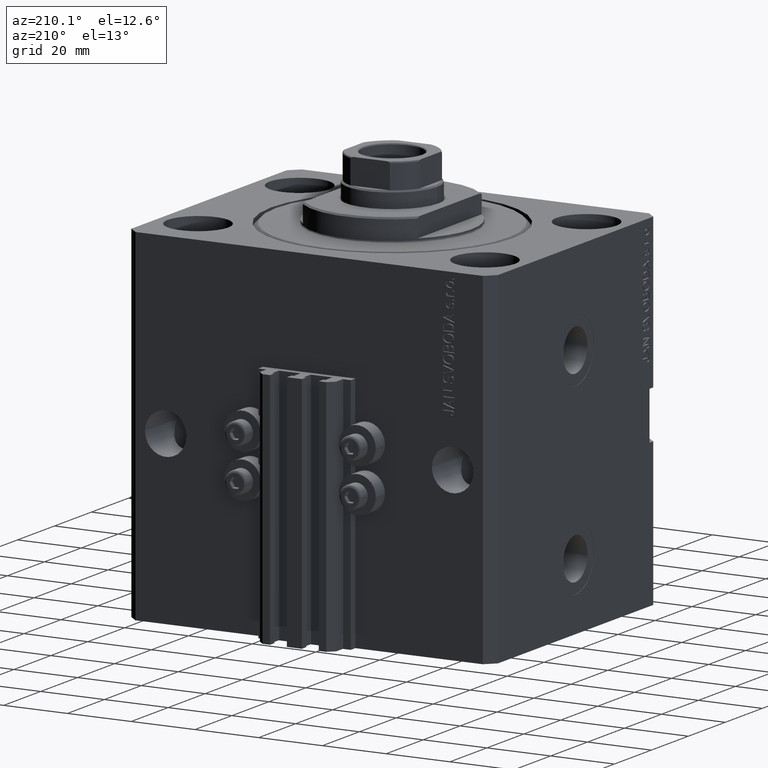
[diagram: clean part render]
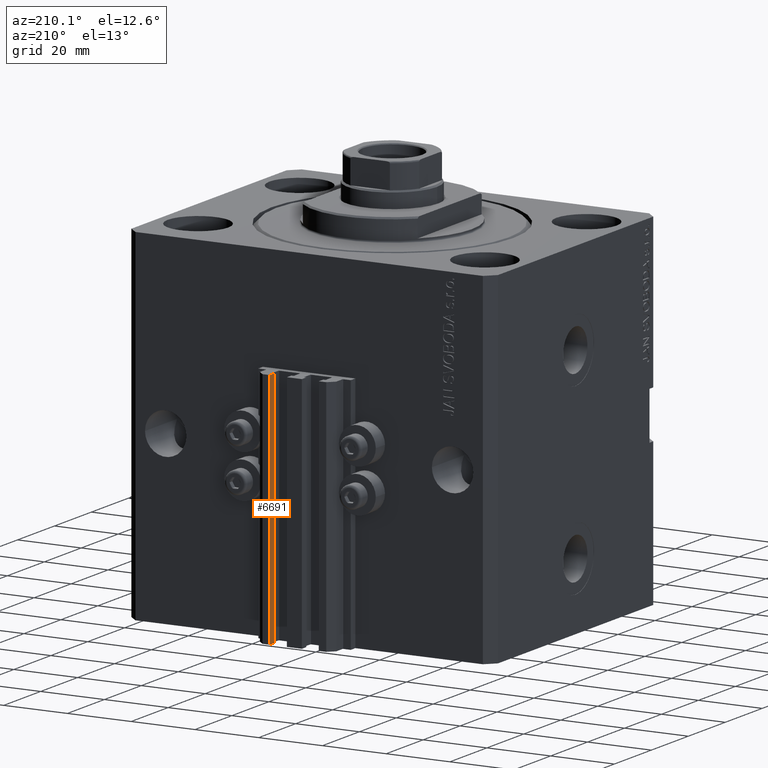
[diagram: same view with one face highlighted and labeled with its STEP entity id]
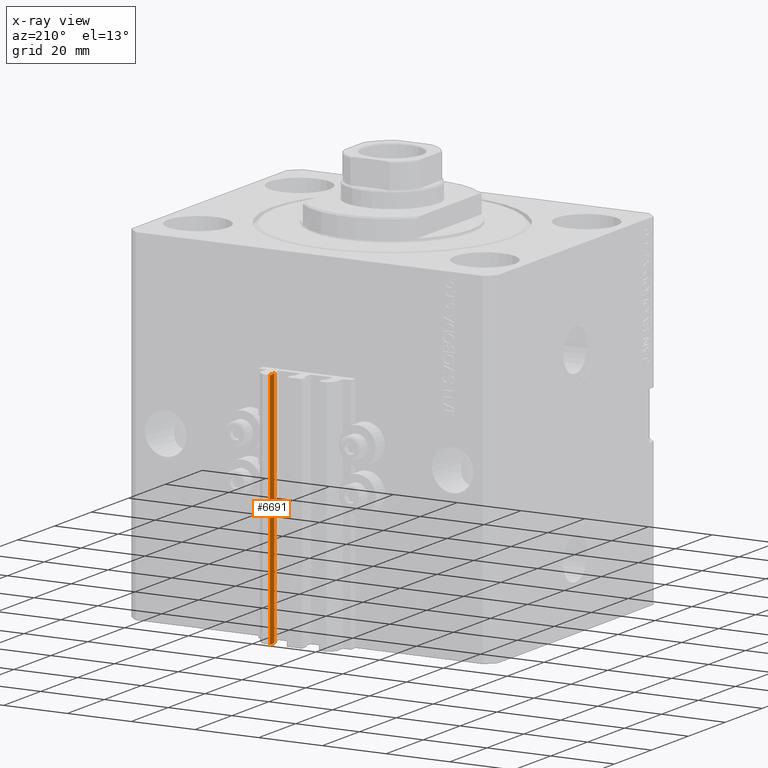
[diagram: x-ray of the same camera — body ghosted, the highlighted face saturated]
A machine part, auxiliary view. The second image highlights one B-rep face of the part: STEP entity #6691.
The next image is the same camera in x-ray: the body ghosted, the highlighted face saturated — about 0% of this face is hidden behind the body in this view.
In plain terms, the highlighted planar face has unit normal (-1, 0, 0).
Its self-contained STEP definition (entity closure, byte-faithful):
#298 = EDGE_CURVE ( 'NONE', #16087, #19181, #25343, .T. ) ;
#801 = VECTOR ( 'NONE', #38090, 1000.000000000000000 ) ;
#3433 = EDGE_CURVE ( 'NONE', #7936, #41264, #30170, .T. ) ;
#3523 = LINE ( 'NONE', #7993, #801 ) ;
#4345 = AXIS2_PLACEMENT_3D ( 'NONE', #28718, #43856, #24995 ) ;
#5107 = ORIENTED_EDGE ( 'NONE', *, *, #33832, .T. ) ;
#6691 = ADVANCED_FACE ( 'NONE', ( #13527 ), #21012, .T. ) ;
#7936 = VERTEX_POINT ( 'NONE', #22183 ) ;
#7993 = CARTESIAN_POINT ( 'NONE',  ( 7.649999999999998579, 53.00000000000000711, -108.0000000000000000 ) ) ;
#13527 = FACE_OUTER_BOUND ( 'NONE', #19072, .T. ) ;
#14123 = CARTESIAN_POINT ( 'NONE',  ( 7.649999999999998579, 53.00000000000000711, -108.0000000000000000 ) ) ;
#15066 = CARTESIAN_POINT ( 'NONE',  ( 7.649999999999998579, 50.60000000000000853, -33.00000000000000000 ) ) ;
#16087 = VERTEX_POINT ( 'NONE', #34454 ) ;
#19072 = EDGE_LOOP ( 'NONE', ( #26320, #26309, #5107, #38778 ) ) ;
#19181 = VERTEX_POINT ( 'NONE', #39137 ) ;
#20946 = VECTOR ( 'NONE', #31572, 1000.000000000000000 ) ;
#21012 = PLANE ( 'NONE',  #4345 ) ;
#22183 = CARTESIAN_POINT ( 'NONE',  ( 7.649999999999998579, 50.60000000000000853, -108.0000000000000000 ) ) ;
#24995 = DIRECTION ( 'NONE',  ( 0.000000000000000000, 0.000000000000000000, 1.000000000000000000 ) ) ;
#25343 = LINE ( 'NONE', #14123, #37504 ) ;
#25440 = LINE ( 'NONE', #40318, #46747 ) ;
#26247 = EDGE_CURVE ( 'NONE', #19181, #41264, #25440, .T. ) ;
#26309 = ORIENTED_EDGE ( 'NONE', *, *, #298, .F. ) ;
#26320 = ORIENTED_EDGE ( 'NONE', *, *, #26247, .F. ) ;
#28718 = CARTESIAN_POINT ( 'NONE',  ( 7.649999999999998579, 53.00000000000000711, -108.0000000000000000 ) ) ;
#30170 = LINE ( 'NONE', #45308, #20946 ) ;
#31572 = DIRECTION ( 'NONE',  ( 0.000000000000000000, 0.000000000000000000, 1.000000000000000000 ) ) ;
#33832 = EDGE_CURVE ( 'NONE', #16087, #7936, #3523, .T. ) ;
#34454 = CARTESIAN_POINT ( 'NONE',  ( 7.649999999999998579, 53.00000000000000711, -108.0000000000000000 ) ) ;
#37504 = VECTOR ( 'NONE', #40469, 1000.000000000000000 ) ;
#38090 = DIRECTION ( 'NONE',  ( 0.000000000000000000, -1.000000000000000000, 0.000000000000000000 ) ) ;
#38778 = ORIENTED_EDGE ( 'NONE', *, *, #3433, .T. ) ;
#39137 = CARTESIAN_POINT ( 'NONE',  ( 7.649999999999998579, 53.00000000000000711, -33.00000000000000000 ) ) ;
#40318 = CARTESIAN_POINT ( 'NONE',  ( 7.649999999999998579, 53.00000000000000711, -33.00000000000000000 ) ) ;
#40469 = DIRECTION ( 'NONE',  ( 0.000000000000000000, 0.000000000000000000, 1.000000000000000000 ) ) ;
#40565 = DIRECTION ( 'NONE',  ( 0.000000000000000000, -1.000000000000000000, 0.000000000000000000 ) ) ;
#41264 = VERTEX_POINT ( 'NONE', #15066 ) ;
#43856 = DIRECTION ( 'NONE',  ( -1.000000000000000000, 0.000000000000000000, 0.000000000000000000 ) ) ;
#45308 = CARTESIAN_POINT ( 'NONE',  ( 7.649999999999998579, 50.60000000000000853, -108.0000000000000000 ) ) ;
#46747 = VECTOR ( 'NONE', #40565, 1000.000000000000000 ) ;